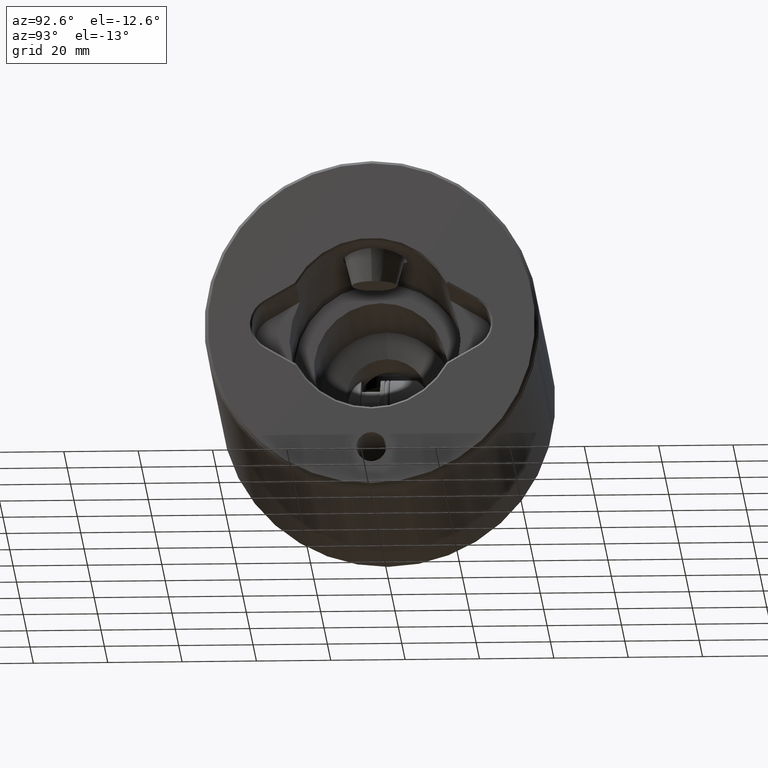
[diagram: clean part render]
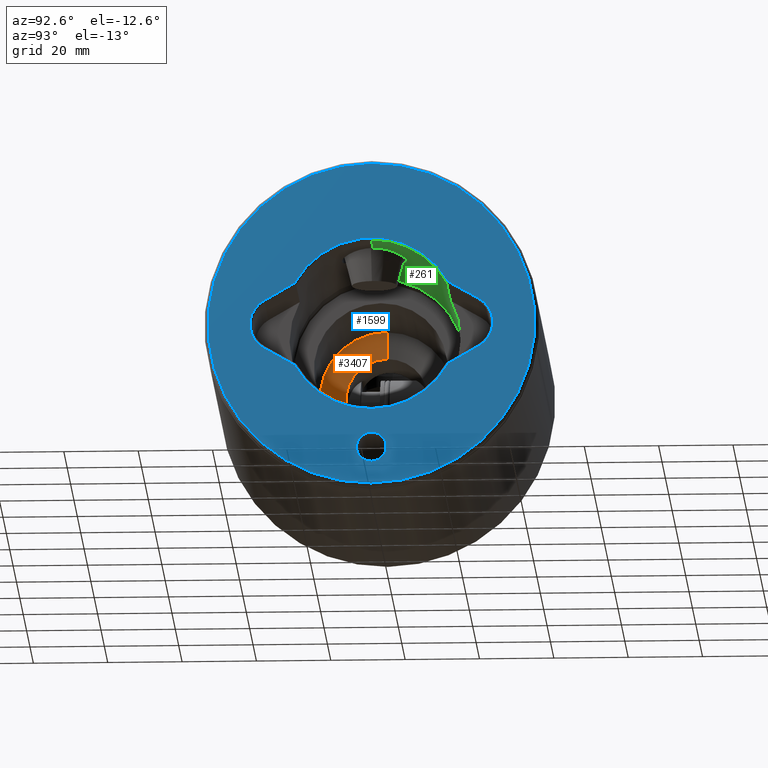
[diagram: same view with three faces highlighted in distinct colors, each labeled with its STEP entity id]
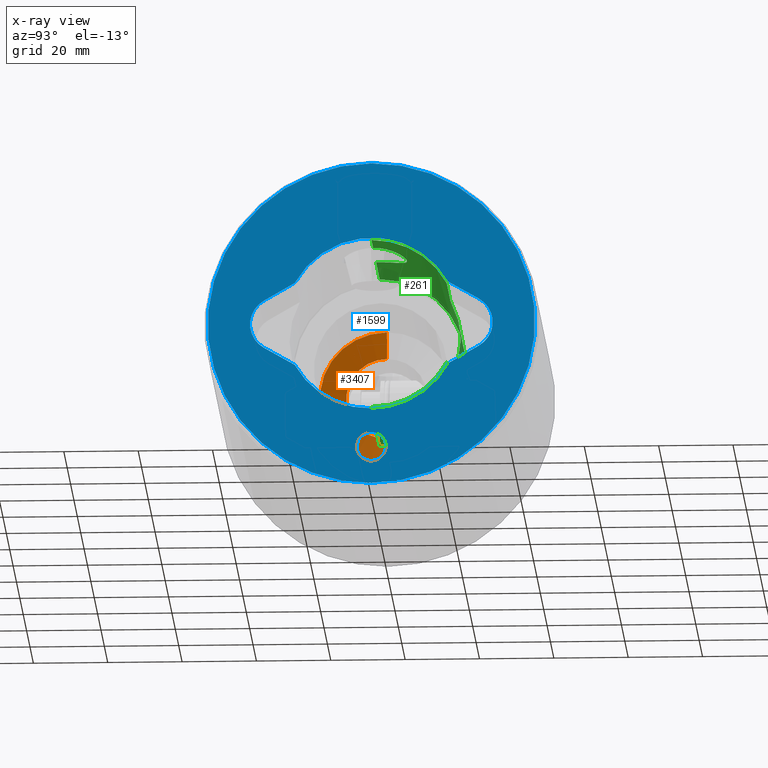
[diagram: x-ray of the same camera — body ghosted, the three highlighted faces saturated]
A machine part, auxiliary view with three faces highlighted in distinct colors.
The next image is the same camera in x-ray (body ghosted, the three faces saturated) — at least one of them is partly hidden behind the body in this view.
Their STEP definitions:

[orange] entity #3407 — the highlighted conical surface has half-angle 77 deg.
#27 = DIRECTION ( 'NONE',  ( -0.0000000000000000000, -0.0000000000000000000, -1.000000000000000000 ) ) ;
#48 = CARTESIAN_POINT ( 'NONE',  ( 10.99999999999997300, 0.0000000000000000000, 93.61607733787893400 ) ) ;
#78 = DIRECTION ( 'NONE',  ( -0.0000000000000000000, -0.0000000000000000000, -1.000000000000000000 ) ) ;
#381 = EDGE_CURVE ( 'NONE', #1232, #3972, #4447, .T. ) ;
#401 = CARTESIAN_POINT ( 'NONE',  ( -10.99999999999997300, 1.347111479062085400E-015, 93.61607733787893400 ) ) ;
#446 = CARTESIAN_POINT ( 'NONE',  ( -17.99999999999998200, 0.0000000000000000000, 92.00000000000000000 ) ) ;
#448 = CARTESIAN_POINT ( 'NONE',  ( 0.0000000000000000000, 0.0000000000000000000, 92.00000000000000000 ) ) ;
#464 = AXIS2_PLACEMENT_3D ( 'NONE', #2442, #78, #2826 ) ;
#467 = DIRECTION ( 'NONE',  ( -1.000000000000000000, 0.0000000000000000000, 0.0000000000000000000 ) ) ;
#718 = ORIENTED_EDGE ( 'NONE', *, *, #1182, .T. ) ;
#745 = FACE_OUTER_BOUND ( 'NONE', #3374, .T. ) ;
#816 = CARTESIAN_POINT ( 'NONE',  ( 17.99999999999998200, 2.204364238465233500E-015, 92.00000000000000000 ) ) ;
#945 = LINE ( 'NONE', #816, #4016 ) ;
#1182 = EDGE_CURVE ( 'NONE', #2891, #1232, #945, .T. ) ;
#1232 = VERTEX_POINT ( 'NONE', #2038 ) ;
#1713 = VERTEX_POINT ( 'NONE', #401 ) ;
#1852 = AXIS2_PLACEMENT_3D ( 'NONE', #448, #27, #467 ) ;
#2038 = CARTESIAN_POINT ( 'NONE',  ( 17.99999999999998200, 2.204364238465233500E-015, 92.00000000000000000 ) ) ;
#2067 = EDGE_CURVE ( 'NONE', #2891, #1713, #2836, .T. ) ;
#2307 = ORIENTED_EDGE ( 'NONE', *, *, #381, .T. ) ;
#2442 = CARTESIAN_POINT ( 'NONE',  ( 0.0000000000000000000, 0.0000000000000000000, 93.61607733787893400 ) ) ;
#2449 = AXIS2_PLACEMENT_3D ( 'NONE', #3126, #4670, #5077 ) ;
#2578 = CONICAL_SURFACE ( 'NONE', #2449, 17.99999999999998200, 1.343903524035634300 ) ;
#2790 = CARTESIAN_POINT ( 'NONE',  ( -17.99999999999998200, 0.0000000000000000000, 92.00000000000000000 ) ) ;
#2826 = DIRECTION ( 'NONE',  ( -1.000000000000000000, 0.0000000000000000000, 0.0000000000000000000 ) ) ;
#2836 = CIRCLE ( 'NONE', #464, 10.99999999999997300 ) ;
#2891 = VERTEX_POINT ( 'NONE', #48 ) ;
#2920 = EDGE_CURVE ( 'NONE', #1713, #3972, #4299, .T. ) ;
#3126 = CARTESIAN_POINT ( 'NONE',  ( 0.0000000000000000000, 0.0000000000000000000, 92.00000000000000000 ) ) ;
#3141 = VECTOR ( 'NONE', #4708, 1000.000000000000100 ) ;
#3374 = EDGE_LOOP ( 'NONE', ( #3984, #718, #2307, #3859 ) ) ;
#3407 = ADVANCED_FACE ( 'NONE', ( #745 ), #2578, .F. ) ;
#3581 = DIRECTION ( 'NONE',  ( 0.9743700647852352500, 1.193259181024237400E-016, -0.2249510543438644800 ) ) ;
#3859 = ORIENTED_EDGE ( 'NONE', *, *, #2920, .F. ) ;
#3972 = VERTEX_POINT ( 'NONE', #446 ) ;
#3984 = ORIENTED_EDGE ( 'NONE', *, *, #2067, .F. ) ;
#4016 = VECTOR ( 'NONE', #3581, 1000.000000000000100 ) ;
#4299 = LINE ( 'NONE', #2790, #3141 ) ;
#4447 = CIRCLE ( 'NONE', #1852, 17.99999999999998200 ) ;
#4670 = DIRECTION ( 'NONE',  ( -0.0000000000000000000, -0.0000000000000000000, -1.000000000000000000 ) ) ;
#4708 = DIRECTION ( 'NONE',  ( -0.9743700647852352500, 0.0000000000000000000, -0.2249510543438644800 ) ) ;
#5077 = DIRECTION ( 'NONE',  ( -1.000000000000000000, 0.0000000000000000000, 0.0000000000000000000 ) ) ;

[blue] entity #1599 — the highlighted planar face has unit normal (-1, 0, 0).
#94 = AXIS2_PLACEMENT_3D ( 'NONE', #1893, #2657, #2689 ) ;
#123 = LINE ( 'NONE', #661, #3386 ) ;
#194 = EDGE_CURVE ( 'NONE', #3293, #4157, #1564, .T. ) ;
#230 = VERTEX_POINT ( 'NONE', #4518 ) ;
#256 = EDGE_CURVE ( 'NONE', #230, #2319, #4384, .T. ) ;
#257 = DIRECTION ( 'NONE',  ( -0.5000000000000008900, -0.8660254037844381500, 0.0000000000000000000 ) ) ;
#314 = FACE_OUTER_BOUND ( 'NONE', #4405, .T. ) ;
#315 = CARTESIAN_POINT ( 'NONE',  ( 17.38545998097262300, 10.03750000000002600, 0.0000000000000000000 ) ) ;
#409 = DIRECTION ( 'NONE',  ( 1.000000000000000000, 0.0000000000000000000, 0.0000000000000000000 ) ) ;
#537 = ORIENTED_EDGE ( 'NONE', *, *, #2782, .T. ) ;
#543 = EDGE_LOOP ( 'NONE', ( #594, #2393, #3167, #4271, #4840, #2362, #1598, #537, #3736 ) ) ;
#594 = ORIENTED_EDGE ( 'NONE', *, *, #4300, .T. ) ;
#602 = ORIENTED_EDGE ( 'NONE', *, *, #4170, .F. ) ;
#612 = DIRECTION ( 'NONE',  ( -0.0000000000000000000, -0.0000000000000000000, -1.000000000000000000 ) ) ;
#661 = CARTESIAN_POINT ( 'NONE',  ( -17.38545998097262000, -10.03750000000003200, 0.0000000000000000000 ) ) ;
#715 = EDGE_CURVE ( 'NONE', #4157, #3049, #1504, .T. ) ;
#856 = CARTESIAN_POINT ( 'NONE',  ( 1.285879139104753500E-016, 25.14999999999999900, 0.0000000000000000000 ) ) ;
#880 = DIRECTION ( 'NONE',  ( 1.000000000000000000, 0.0000000000000000000, 0.0000000000000000000 ) ) ;
#923 = VECTOR ( 'NONE', #2364, 1000.000000000000100 ) ;
#931 = AXIS2_PLACEMENT_3D ( 'NONE', #856, #4298, #4360 ) ;
#1077 = EDGE_CURVE ( 'NONE', #3975, #3293, #1440, .T. ) ;
#1216 = CARTESIAN_POINT ( 'NONE',  ( -34.00000000000000000, 0.0000000000000000000, 2.143131898507869300E-016 ) ) ;
#1224 = CIRCLE ( 'NONE', #4978, 3.999999999999996400 ) ;
#1234 = LINE ( 'NONE', #315, #4291 ) ;
#1308 = FACE_BOUND ( 'NONE', #543, .T. ) ;
#1343 = VERTEX_POINT ( 'NONE', #2535 ) ;
#1440 = CIRCLE ( 'NONE', #931, 7.500000000000005300 ) ;
#1504 = CIRCLE ( 'NONE', #1756, 23.50000000000000400 ) ;
#1505 = DIRECTION ( 'NONE',  ( 1.000000000000000000, 0.0000000000000000000, 0.0000000000000000000 ) ) ;
#1564 = LINE ( 'NONE', #4969, #4571 ) ;
#1586 = AXIS2_PLACEMENT_3D ( 'NONE', #3312, #3730, #880 ) ;
#1598 = ORIENTED_EDGE ( 'NONE', *, *, #3778, .T. ) ;
#1599 = ADVANCED_FACE ( 'NONE', ( #2414, #314, #1308 ), #3041, .F. ) ;
#1680 = EDGE_CURVE ( 'NONE', #4276, #4572, #4436, .T. ) ;
#1708 = VERTEX_POINT ( 'NONE', #2753 ) ;
#1734 = AXIS2_PLACEMENT_3D ( 'NONE', #2958, #612, #4531 ) ;
#1756 = AXIS2_PLACEMENT_3D ( 'NONE', #3640, #4827, #3240 ) ;
#1807 = EDGE_CURVE ( 'NONE', #4771, #2505, #4130, .T. ) ;
#1893 = CARTESIAN_POINT ( 'NONE',  ( 0.0000000000000000000, 0.0000000000000000000, 0.0000000000000000000 ) ) ;
#1897 = CARTESIAN_POINT ( 'NONE',  ( 0.0000000000000000000, 0.0000000000000000000, 0.0000000000000000000 ) ) ;
#1938 = AXIS2_PLACEMENT_3D ( 'NONE', #2660, #2349, #409 ) ;
#2017 = LINE ( 'NONE', #4656, #923 ) ;
#2137 = VERTEX_POINT ( 'NONE', #4441 ) ;
#2152 = DIRECTION ( 'NONE',  ( -0.0000000000000000000, -0.0000000000000000000, -1.000000000000000000 ) ) ;
#2319 = VERTEX_POINT ( 'NONE', #3775 ) ;
#2349 = DIRECTION ( 'NONE',  ( -0.0000000000000000000, -0.0000000000000000000, -1.000000000000000000 ) ) ;
#2362 = ORIENTED_EDGE ( 'NONE', *, *, #715, .T. ) ;
#2364 = DIRECTION ( 'NONE',  ( 0.5000000000000011100, 0.8660254037844379300, 0.0000000000000000000 ) ) ;
#2371 = ORIENTED_EDGE ( 'NONE', *, *, #4203, .T. ) ;
#2383 = DIRECTION ( 'NONE',  ( 0.0000000000000000000, 0.0000000000000000000, 1.000000000000000000 ) ) ;
#2393 = ORIENTED_EDGE ( 'NONE', *, *, #1680, .T. ) ;
#2414 = FACE_BOUND ( 'NONE', #4902, .T. ) ;
#2425 = CARTESIAN_POINT ( 'NONE',  ( -23.50000000000000400, 0.0000000000000000000, 0.0000000000000000000 ) ) ;
#2505 = VERTEX_POINT ( 'NONE', #3163 ) ;
#2513 = CIRCLE ( 'NONE', #1734, 43.99999999999999300 ) ;
#2535 = CARTESIAN_POINT ( 'NONE',  ( -30.00000000000000700, 4.898587196589406900E-016, 2.143131898507869300E-016 ) ) ;
#2569 = ORIENTED_EDGE ( 'NONE', *, *, #256, .T. ) ;
#2657 = DIRECTION ( 'NONE',  ( 0.0000000000000000000, 0.0000000000000000000, 1.000000000000000000 ) ) ;
#2660 = CARTESIAN_POINT ( 'NONE',  ( 0.0000000000000000000, 0.0000000000000000000, 0.0000000000000000000 ) ) ;
#2670 = DIRECTION ( 'NONE',  ( -0.5000000000000006700, 0.8660254037844382600, 0.0000000000000000000 ) ) ;
#2689 = DIRECTION ( 'NONE',  ( 1.000000000000000000, 0.0000000000000000000, -0.0000000000000000000 ) ) ;
#2753 = CARTESIAN_POINT ( 'NONE',  ( -38.00000000000000000, 0.0000000000000000000, 2.143131898507869300E-016 ) ) ;
#2769 = DIRECTION ( 'NONE',  ( 1.000000000000000000, 0.0000000000000000000, 0.0000000000000000000 ) ) ;
#2782 = EDGE_CURVE ( 'NONE', #2137, #4771, #123, .T. ) ;
#2864 = ORIENTED_EDGE ( 'NONE', *, *, #3500, .F. ) ;
#2958 = CARTESIAN_POINT ( 'NONE',  ( 0.0000000000000000000, 0.0000000000000000000, 0.0000000000000000000 ) ) ;
#3041 = PLANE ( 'NONE',  #94 ) ;
#3049 = VERTEX_POINT ( 'NONE', #2425 ) ;
#3059 = CARTESIAN_POINT ( 'NONE',  ( 11.27717922858409800, -20.61735261003195800, 0.0000000000000000000 ) ) ;
#3079 = CARTESIAN_POINT ( 'NONE',  ( -6.495190528383285600, 28.90000000000000900, 0.0000000000000000000 ) ) ;
#3163 = CARTESIAN_POINT ( 'NONE',  ( 6.495190528383276700, -28.90000000000000900, 0.0000000000000000000 ) ) ;
#3167 = ORIENTED_EDGE ( 'NONE', *, *, #3348, .T. ) ;
#3190 = DIRECTION ( 'NONE',  ( -0.0000000000000000000, -0.0000000000000000000, -1.000000000000000000 ) ) ;
#3233 = AXIS2_PLACEMENT_3D ( 'NONE', #1216, #3190, #4716 ) ;
#3240 = DIRECTION ( 'NONE',  ( 1.000000000000000000, 0.0000000000000000000, 0.0000000000000000000 ) ) ;
#3293 = VERTEX_POINT ( 'NONE', #3079 ) ;
#3312 = CARTESIAN_POINT ( 'NONE',  ( 1.285879139104753500E-016, -25.14999999999999900, 0.0000000000000000000 ) ) ;
#3348 = EDGE_CURVE ( 'NONE', #4572, #3975, #1234, .T. ) ;
#3351 = CARTESIAN_POINT ( 'NONE',  ( -11.27717922858410800, 20.61735261003195100, 0.0000000000000000000 ) ) ;
#3386 = VECTOR ( 'NONE', #3405, 1000.000000000000000 ) ;
#3405 = DIRECTION ( 'NONE',  ( 0.5000000000000008900, -0.8660254037844381500, 0.0000000000000000000 ) ) ;
#3410 = CARTESIAN_POINT ( 'NONE',  ( -6.495190528383281100, -28.90000000000000900, 0.0000000000000000000 ) ) ;
#3466 = DIRECTION ( 'NONE',  ( 0.0000000000000000000, 0.0000000000000000000, 1.000000000000000000 ) ) ;
#3500 = EDGE_CURVE ( 'NONE', #1343, #1708, #3935, .T. ) ;
#3626 = CIRCLE ( 'NONE', #4420, 23.50000000000000400 ) ;
#3640 = CARTESIAN_POINT ( 'NONE',  ( 0.0000000000000000000, 0.0000000000000000000, 0.0000000000000000000 ) ) ;
#3727 = AXIS2_PLACEMENT_3D ( 'NONE', #3949, #2383, #2769 ) ;
#3730 = DIRECTION ( 'NONE',  ( 0.0000000000000000000, 0.0000000000000000000, 1.000000000000000000 ) ) ;
#3736 = ORIENTED_EDGE ( 'NONE', *, *, #1807, .T. ) ;
#3775 = CARTESIAN_POINT ( 'NONE',  ( 43.99999999999999300, 0.0000000000000000000, 0.0000000000000000000 ) ) ;
#3778 = EDGE_CURVE ( 'NONE', #3049, #2137, #3626, .T. ) ;
#3935 = CIRCLE ( 'NONE', #3233, 3.999999999999996400 ) ;
#3949 = CARTESIAN_POINT ( 'NONE',  ( 0.0000000000000000000, 0.0000000000000000000, 0.0000000000000000000 ) ) ;
#3975 = VERTEX_POINT ( 'NONE', #4741 ) ;
#4019 = DIRECTION ( 'NONE',  ( -1.000000000000000000, 0.0000000000000000000, 0.0000000000000000000 ) ) ;
#4072 = CARTESIAN_POINT ( 'NONE',  ( 11.27717922858411500, 20.61735261003194700, 0.0000000000000000000 ) ) ;
#4130 = CIRCLE ( 'NONE', #1586, 7.499999999999998200 ) ;
#4157 = VERTEX_POINT ( 'NONE', #3351 ) ;
#4170 = EDGE_CURVE ( 'NONE', #1708, #1343, #1224, .T. ) ;
#4203 = EDGE_CURVE ( 'NONE', #2319, #230, #2513, .T. ) ;
#4271 = ORIENTED_EDGE ( 'NONE', *, *, #1077, .T. ) ;
#4276 = VERTEX_POINT ( 'NONE', #3059 ) ;
#4291 = VECTOR ( 'NONE', #2670, 1000.000000000000100 ) ;
#4298 = DIRECTION ( 'NONE',  ( 0.0000000000000000000, 0.0000000000000000000, 1.000000000000000000 ) ) ;
#4300 = EDGE_CURVE ( 'NONE', #2505, #4276, #2017, .T. ) ;
#4360 = DIRECTION ( 'NONE',  ( 1.000000000000000000, 0.0000000000000000000, 0.0000000000000000000 ) ) ;
#4384 = CIRCLE ( 'NONE', #1938, 43.99999999999999300 ) ;
#4405 = EDGE_LOOP ( 'NONE', ( #2371, #2569 ) ) ;
#4420 = AXIS2_PLACEMENT_3D ( 'NONE', #1897, #3466, #1505 ) ;
#4436 = CIRCLE ( 'NONE', #3727, 23.50000000000000400 ) ;
#4441 = CARTESIAN_POINT ( 'NONE',  ( -11.27717922858411200, -20.61735261003194700, 0.0000000000000000000 ) ) ;
#4518 = CARTESIAN_POINT ( 'NONE',  ( -43.99999999999999300, 5.437431788214247800E-015, 0.0000000000000000000 ) ) ;
#4531 = DIRECTION ( 'NONE',  ( 1.000000000000000000, 0.0000000000000000000, 0.0000000000000000000 ) ) ;
#4571 = VECTOR ( 'NONE', #257, 1000.000000000000000 ) ;
#4572 = VERTEX_POINT ( 'NONE', #4072 ) ;
#4656 = CARTESIAN_POINT ( 'NONE',  ( 17.38545998097261600, -10.03750000000003300, 0.0000000000000000000 ) ) ;
#4716 = DIRECTION ( 'NONE',  ( -1.000000000000000000, 0.0000000000000000000, 0.0000000000000000000 ) ) ;
#4741 = CARTESIAN_POINT ( 'NONE',  ( 6.495190528383287400, 28.90000000000001300, 0.0000000000000000000 ) ) ;
#4771 = VERTEX_POINT ( 'NONE', #3410 ) ;
#4820 = CARTESIAN_POINT ( 'NONE',  ( -34.00000000000000000, 0.0000000000000000000, 2.143131898507869300E-016 ) ) ;
#4827 = DIRECTION ( 'NONE',  ( 0.0000000000000000000, 0.0000000000000000000, 1.000000000000000000 ) ) ;
#4840 = ORIENTED_EDGE ( 'NONE', *, *, #194, .T. ) ;
#4902 = EDGE_LOOP ( 'NONE', ( #602, #2864 ) ) ;
#4969 = CARTESIAN_POINT ( 'NONE',  ( -17.38545998097261600, 10.03750000000003000, 0.0000000000000000000 ) ) ;
#4978 = AXIS2_PLACEMENT_3D ( 'NONE', #4820, #2152, #4019 ) ;

[green] entity #261 — the highlighted cylindrical surface (partial cylindrical patch) has radius 23 mm, axis along (1, -0, -0).
#4 = VECTOR ( 'NONE', #3983, 1000.000000000000000 ) ;
#60 = EDGE_CURVE ( 'NONE', #849, #4520, #1259, .T. ) ;
#63 = VECTOR ( 'NONE', #3675, 1000.000000000000000 ) ;
#70 = CARTESIAN_POINT ( 'NONE',  ( 22.79078511357471400, 3.106695688427337100, 10.86507258574110500 ) ) ;
#85 = CYLINDRICAL_SURFACE ( 'NONE', #5095, 23.00000000000000000 ) ;
#124 = CARTESIAN_POINT ( 'NONE',  ( 22.26486023155932900, 5.783557472764931300, 25.64050026564821700 ) ) ;
#139 = CARTESIAN_POINT ( 'NONE',  ( 22.37221013411851800, 5.341865672504456900, 12.11400421193638300 ) ) ;
#153 = CARTESIAN_POINT ( 'NONE',  ( 22.04008380412203000, 6.578043594067725800, 24.82696244020252900 ) ) ;
#163 = CARTESIAN_POINT ( 'NONE',  ( -23.00000000000000000, 0.0000000000000000000, 0.5000000000000004400 ) ) ;
#195 = CARTESIAN_POINT ( 'NONE',  ( 21.27071396625982700, 8.749670136164635200, 18.46803675721331200 ) ) ;
#208 = ORIENTED_EDGE ( 'NONE', *, *, #3412, .F. ) ;
#261 = ADVANCED_FACE ( 'NONE', ( #4146 ), #85, .F. ) ;
#391 = CARTESIAN_POINT ( 'NONE',  ( 23.00000000000000000, 2.816687638038912400E-015, 49.00000000000000000 ) ) ;
#522 = CARTESIAN_POINT ( 'NONE',  ( 22.97305021472789500, 1.149609184862457000, 27.72895324198374600 ) ) ;
#540 = CARTESIAN_POINT ( 'NONE',  ( 22.58029562668765800, 4.400577232456115000, 11.46563371786791700 ) ) ;
#566 = LINE ( 'NONE', #2043, #2041 ) ;
#593 = CARTESIAN_POINT ( 'NONE',  ( 22.71364949128435700, 3.627790803939144200, 27.01761393111114300 ) ) ;
#849 = VERTEX_POINT ( 'NONE', #391 ) ;
#925 = CARTESIAN_POINT ( 'NONE',  ( 22.37502146825950100, 5.347186087438042400, 25.99939832810467500 ) ) ;
#939 = AXIS2_PLACEMENT_3D ( 'NONE', #4333, #2047, #1223 ) ;
#994 = CARTESIAN_POINT ( 'NONE',  ( 21.29989476067637700, 8.678447356140999600, 20.20403700809680500 ) ) ;
#1024 = AXIS2_PLACEMENT_3D ( 'NONE', #2872, #4069, #3284 ) ;
#1107 = VERTEX_POINT ( 'NONE', #2801 ) ;
#1120 = CARTESIAN_POINT ( 'NONE',  ( 10.91466260670263100, 20.24524981771890700, 0.5000000000000073300 ) ) ;
#1171 = CARTESIAN_POINT ( 'NONE',  ( 23.00000000000000000, 2.816687638038912400E-015, 56.00000000000000000 ) ) ;
#1174 = VECTOR ( 'NONE', #2259, 1000.000000000000000 ) ;
#1177 = DIRECTION ( 'NONE',  ( -1.000000000000000000, 0.0000000000000000000, 0.0000000000000000000 ) ) ;
#1223 = DIRECTION ( 'NONE',  ( 1.000000000000000000, 0.0000000000000000000, 0.0000000000000000000 ) ) ;
#1243 = EDGE_CURVE ( 'NONE', #4705, #1107, #1691, .T. ) ;
#1259 = CIRCLE ( 'NONE', #4401, 23.00000000000000000 ) ;
#1281 = CARTESIAN_POINT ( 'NONE',  ( 22.97780217286428700, 1.157338971027883600, 10.35788529273376000 ) ) ;
#1299 = CARTESIAN_POINT ( 'NONE',  ( 23.00000000000000000, 0.5840702523644952800, 10.30000000000000800 ) ) ;
#1314 = CARTESIAN_POINT ( 'NONE',  ( 21.92713170609178900, 6.950821931869561400, 13.70424826284844300 ) ) ;
#1353 = CARTESIAN_POINT ( 'NONE',  ( 21.87410311844637100, 7.109945121435953500, 24.15799489721571500 ) ) ;
#1373 = CARTESIAN_POINT ( 'NONE',  ( 22.20698818690026100, 5.991048319674718800, 12.66645304501710200 ) ) ;
#1387 = CARTESIAN_POINT ( 'NONE',  ( 22.99460636268318900, 0.5750788394468048200, 27.78585227570160400 ) ) ;
#1399 = ORIENTED_EDGE ( 'NONE', *, *, #3970, .T. ) ;
#1422 = DIRECTION ( 'NONE',  ( -1.000000000000000000, 0.0000000000000000000, 0.0000000000000000000 ) ) ;
#1424 = VECTOR ( 'NONE', #2021, 1000.000000000000000 ) ;
#1443 = CARTESIAN_POINT ( 'NONE',  ( 10.91466260670263100, 20.24524981771890700, 56.00000000000000000 ) ) ;
#1566 = CARTESIAN_POINT ( 'NONE',  ( 0.0000000000000000000, 0.0000000000000000000, 56.00000000000000000 ) ) ;
#1675 = CARTESIAN_POINT ( 'NONE',  ( -10.91466260670263100, 20.24524981771890400, 56.00000000000000000 ) ) ;
#1691 = CIRCLE ( 'NONE', #1024, 23.00000000000000000 ) ;
#1700 = CARTESIAN_POINT ( 'NONE',  ( 22.57840175478767000, 4.391100714871348600, 26.62383581653577400 ) ) ;
#1716 = CARTESIAN_POINT ( 'NONE',  ( 21.27637035656256600, 8.735961869169615900, 19.62464784849695200 ) ) ;
#1737 = CARTESIAN_POINT ( 'NONE',  ( 22.42625301909557600, 5.110957167239959600, 11.94212304518946200 ) ) ;
#1748 = EDGE_CURVE ( 'NONE', #3236, #1107, #3454, .T. ) ;
#1752 = CARTESIAN_POINT ( 'NONE',  ( 21.61873234311296700, 7.854092342357796900, 22.94992981913611600 ) ) ;
#1780 = EDGE_CURVE ( 'NONE', #2444, #2869, #566, .T. ) ;
#1789 = CARTESIAN_POINT ( 'NONE',  ( 0.0000000000000000000, 0.0000000000000000000, 49.00000000000000000 ) ) ;
#1842 = CARTESIAN_POINT ( 'NONE',  ( -10.91466260670263100, 20.24524981771890400, 0.5000000000000073300 ) ) ;
#1910 = LINE ( 'NONE', #1443, #1174 ) ;
#2021 = DIRECTION ( 'NONE',  ( -0.0000000000000000000, -0.0000000000000000000, -1.000000000000000000 ) ) ;
#2037 = CARTESIAN_POINT ( 'NONE',  ( 22.91444863313331500, 2.001936659033265500, 10.52725410986856900 ) ) ;
#2041 = VECTOR ( 'NONE', #3747, 1000.000000000000000 ) ;
#2043 = CARTESIAN_POINT ( 'NONE',  ( 23.00000000000000000, 2.816687638038912400E-015, 56.00000000000000000 ) ) ;
#2047 = DIRECTION ( 'NONE',  ( 0.0000000000000000000, 0.0000000000000000000, -1.000000000000000000 ) ) ;
#2121 = CARTESIAN_POINT ( 'NONE',  ( 21.45201412813075200, 8.298641123215320500, 21.88350924200892700 ) ) ;
#2125 = VERTEX_POINT ( 'NONE', #163 ) ;
#2183 = EDGE_CURVE ( 'NONE', #4520, #2125, #2404, .T. ) ;
#2222 = CARTESIAN_POINT ( 'NONE',  ( 10.91466260670262400, 20.24524981771890700, 22.00000000000000000 ) ) ;
#2259 = DIRECTION ( 'NONE',  ( -0.0000000000000000000, -0.0000000000000000000, -1.000000000000000000 ) ) ;
#2298 = CARTESIAN_POINT ( 'NONE',  ( 23.00000000000000000, 2.816687638038912400E-015, 0.5000000000000004400 ) ) ;
#2353 = CARTESIAN_POINT ( 'NONE',  ( 23.00000000000000000, 2.816915103184660800E-015, 27.79999999999999400 ) ) ;
#2404 = LINE ( 'NONE', #2907, #63 ) ;
#2444 = VERTEX_POINT ( 'NONE', #2614 ) ;
#2467 = LINE ( 'NONE', #1171, #1424 ) ;
#2483 = CARTESIAN_POINT ( 'NONE',  ( 22.03957496172558100, 6.590073801840134100, 13.26616441564116800 ) ) ;
#2497 = EDGE_LOOP ( 'NONE', ( #208, #4217, #4838, #1399, #3613, #3174, #4912, #3498, #3658, #3370 ) ) ;
#2514 = CARTESIAN_POINT ( 'NONE',  ( 21.31739538385432200, 8.635529460251412100, 20.48970533595531400 ) ) ;
#2531 = DIRECTION ( 'NONE',  ( 0.0000000000000000000, 0.0000000000000000000, -1.000000000000000000 ) ) ;
#2546 = CARTESIAN_POINT ( 'NONE',  ( 22.26265561750513900, 5.781477320253348900, 12.47595357253130600 ) ) ;
#2583 = CIRCLE ( 'NONE', #3071, 23.00000000000000000 ) ;
#2614 = CARTESIAN_POINT ( 'NONE',  ( 23.00000000000000000, 9.001787135371156300E-016, 10.30000000000000800 ) ) ;
#2625 = EDGE_CURVE ( 'NONE', #2444, #5036, #4412, .T. ) ;
#2650 = EDGE_CURVE ( 'NONE', #3285, #2869, #2583, .T. ) ;
#2801 = CARTESIAN_POINT ( 'NONE',  ( -10.91466260670263100, 20.24524981771890400, 22.00000000000000000 ) ) ;
#2867 = CARTESIAN_POINT ( 'NONE',  ( 21.49444620193621300, 8.185503024997304400, 15.94500519971540200 ) ) ;
#2869 = VERTEX_POINT ( 'NONE', #2298 ) ;
#2872 = CARTESIAN_POINT ( 'NONE',  ( 0.0000000000000000000, 0.0000000000000000000, 22.00000000000000000 ) ) ;
#2903 = CARTESIAN_POINT ( 'NONE',  ( 23.00000000000000400, 0.2876302714626601300, 27.79999999999999000 ) ) ;
#2907 = CARTESIAN_POINT ( 'NONE',  ( -23.00000000000000000, 0.0000000000000000000, 56.00000000000000000 ) ) ;
#2921 = CARTESIAN_POINT ( 'NONE',  ( 21.71460114469685000, 7.588750062532338500, 14.65661182545484200 ) ) ;
#2945 = CARTESIAN_POINT ( 'NONE',  ( 21.92863848998339200, 6.940516233955290400, 24.38602726447020100 ) ) ;
#3071 = AXIS2_PLACEMENT_3D ( 'NONE', #4889, #2531, #3705 ) ;
#3174 = ORIENTED_EDGE ( 'NONE', *, *, #1243, .F. ) ;
#3223 = EDGE_CURVE ( 'NONE', #4705, #3285, #1910, .T. ) ;
#3227 = CARTESIAN_POINT ( 'NONE',  ( -23.00000000000000000, 0.0000000000000000000, 49.00000000000000000 ) ) ;
#3236 = VERTEX_POINT ( 'NONE', #1842 ) ;
#3282 = CARTESIAN_POINT ( 'NONE',  ( 21.27051129876362600, 8.750162805382673900, 19.33351024004275200 ) ) ;
#3284 = DIRECTION ( 'NONE',  ( -1.000000000000000000, 1.776356839400250500E-015, 0.0000000000000000000 ) ) ;
#3285 = VERTEX_POINT ( 'NONE', #1120 ) ;
#3321 = CARTESIAN_POINT ( 'NONE',  ( 22.83037562779471900, 2.838468955980917800, 27.34641762904085400 ) ) ;
#3340 = CARTESIAN_POINT ( 'NONE',  ( 21.45709060917217700, 8.282599033378677000, 16.21381311232042000 ) ) ;
#3370 = ORIENTED_EDGE ( 'NONE', *, *, #2625, .T. ) ;
#3412 = EDGE_CURVE ( 'NONE', #849, #5036, #2467, .T. ) ;
#3454 = LINE ( 'NONE', #1675, #4 ) ;
#3498 = ORIENTED_EDGE ( 'NONE', *, *, #2650, .T. ) ;
#3613 = ORIENTED_EDGE ( 'NONE', *, *, #1748, .T. ) ;
#3637 = CARTESIAN_POINT ( 'NONE',  ( 23.00000000000000000, 9.001787135371156300E-016, 10.30000000000000800 ) ) ;
#3658 = ORIENTED_EDGE ( 'NONE', *, *, #1780, .F. ) ;
#3666 = CARTESIAN_POINT ( 'NONE',  ( 21.36276762995154100, 8.522669559643684800, 17.04752248405451500 ) ) ;
#3675 = DIRECTION ( 'NONE',  ( -0.0000000000000000000, -0.0000000000000000000, -1.000000000000000000 ) ) ;
#3687 = CIRCLE ( 'NONE', #939, 23.00000000000000000 ) ;
#3705 = DIRECTION ( 'NONE',  ( 1.000000000000000000, 0.0000000000000000000, 0.0000000000000000000 ) ) ;
#3719 = CARTESIAN_POINT ( 'NONE',  ( 22.67325518791901800, 3.899907173001711900, 11.19623634486692500 ) ) ;
#3739 = CARTESIAN_POINT ( 'NONE',  ( 22.95675592967254300, 1.438306611336758600, 27.68585255195038600 ) ) ;
#3747 = DIRECTION ( 'NONE',  ( -0.0000000000000000000, -0.0000000000000000000, -1.000000000000000000 ) ) ;
#3970 = EDGE_CURVE ( 'NONE', #2125, #3236, #3687, .T. ) ;
#3983 = DIRECTION ( 'NONE',  ( 0.0000000000000000000, 0.0000000000000000000, 1.000000000000000000 ) ) ;
#3995 = CARTESIAN_POINT ( 'NONE',  ( 22.88831201872756400, 2.280900304718646200, 10.59757406961543100 ) ) ;
#4067 = CARTESIAN_POINT ( 'NONE',  ( 21.39127149467109800, 8.451135308301575200, 16.76445524866622000 ) ) ;
#4069 = DIRECTION ( 'NONE',  ( -0.0000000000000000000, -0.0000000000000000000, 1.000000000000000000 ) ) ;
#4081 = CARTESIAN_POINT ( 'NONE',  ( 22.52879557855931100, 4.638088611613369500, 26.47506855691656500 ) ) ;
#4093 = CARTESIAN_POINT ( 'NONE',  ( 22.09683052002917900, 6.385410363635116000, 25.03911238716157300 ) ) ;
#4146 = FACE_OUTER_BOUND ( 'NONE', #2497, .T. ) ;
#4217 = ORIENTED_EDGE ( 'NONE', *, *, #60, .T. ) ;
#4223 = DIRECTION ( 'NONE',  ( -0.0000000000000000000, -0.0000000000000000000, -1.000000000000000000 ) ) ;
#4333 = CARTESIAN_POINT ( 'NONE',  ( 0.0000000000000000000, 0.0000000000000000000, 0.5000000000000004400 ) ) ;
#4401 = AXIS2_PLACEMENT_3D ( 'NONE', #1789, #4535, #1422 ) ;
#4412 = B_SPLINE_CURVE_WITH_KNOTS ( 'NONE', 3,
 ( #3637, #1299, #1281, #2037, #3995, #4421, #70, #3719, #540, #1737, #139, #2546, #1373, #2483, #1314, #2921, #4837, #2867, #3340, #4067, #3666, #4465, #195, #3282, #1716, #994, #2514, #4449, #2121, #1752, #4874, #1353, #2945, #153, #4093, #124, #925, #4081, #1700, #4435, #593, #3321, #4488, #3739, #522, #1387, #2903, #4503 ),
 .UNSPECIFIED., .F., .F.,
 ( 4, 2, 2, 2, 2, 2, 2, 2, 2, 2, 2, 2, 2, 2, 2, 2, 2, 2, 2, 2, 2, 2, 2, 4 ),
 ( 8.736550217295964100E-019, 0.001726203375405270600, 0.002589305063107905700, 0.003452406750810540400, 0.005178610126215808800, 0.006041711813918443000, 0.006904813501621078100, 0.008631016877026352600, 0.01035722025243162500, 0.01122032194013426700, 0.01208342362783690900, 0.01380962700324217700, 0.01467272869094482000, 0.01553583037864746100, 0.01726203375405272600, 0.01898823712945799800, 0.01985133881716063000, 0.02071444050486325900, 0.02244064388026852400, 0.02330374556797116000, 0.02416684725567379600, 0.02589305063107906100, 0.02675615231878169700, 0.02761925400648433300 ),
 .UNSPECIFIED. ) ;
#4421 = CARTESIAN_POINT ( 'NONE',  ( 22.82647322422242900, 2.833629017805799200, 10.76648885446805300 ) ) ;
#4435 = CARTESIAN_POINT ( 'NONE',  ( 22.67084570997149500, 3.885710499176350000, 26.89512640947069500 ) ) ;
#4449 = CARTESIAN_POINT ( 'NONE',  ( 21.38559924421623700, 8.465872961930813300, 21.33516455544060300 ) ) ;
#4465 = CARTESIAN_POINT ( 'NONE',  ( 21.29435677868601200, 8.692831432781746400, 17.89655638186385600 ) ) ;
#4488 = CARTESIAN_POINT ( 'NONE',  ( 22.89265766450899500, 2.291658776231035000, 27.51448467907491800 ) ) ;
#4503 = CARTESIAN_POINT ( 'NONE',  ( 23.00000000000000000, 2.816915103184660800E-015, 27.79999999999999400 ) ) ;
#4520 = VERTEX_POINT ( 'NONE', #3227 ) ;
#4535 = DIRECTION ( 'NONE',  ( -0.0000000000000000000, -0.0000000000000000000, 1.000000000000000000 ) ) ;
#4705 = VERTEX_POINT ( 'NONE', #2222 ) ;
#4837 = CARTESIAN_POINT ( 'NONE',  ( 21.61764029903936200, 7.856992879087251000, 15.15718959797549600 ) ) ;
#4838 = ORIENTED_EDGE ( 'NONE', *, *, #2183, .T. ) ;
#4874 = CARTESIAN_POINT ( 'NONE',  ( 21.71630774208786000, 7.583719767762913100, 23.45129759085808300 ) ) ;
#4889 = CARTESIAN_POINT ( 'NONE',  ( 0.0000000000000000000, 0.0000000000000000000, 0.5000000000000004400 ) ) ;
#4912 = ORIENTED_EDGE ( 'NONE', *, *, #3223, .T. ) ;
#5036 = VERTEX_POINT ( 'NONE', #2353 ) ;
#5095 = AXIS2_PLACEMENT_3D ( 'NONE', #1566, #4223, #1177 ) ;